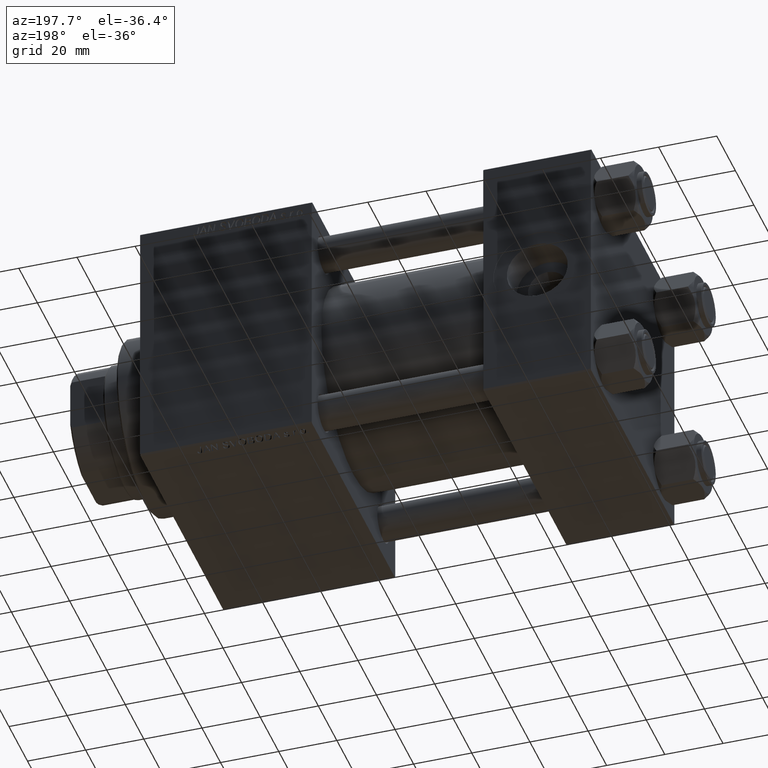
[diagram: clean part render]
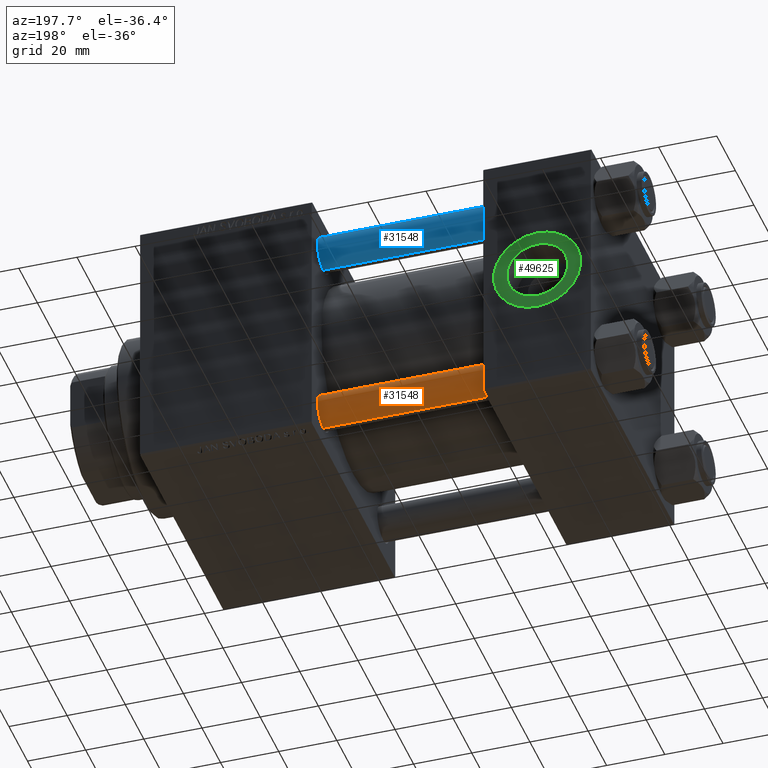
[diagram: same view with three faces highlighted in distinct colors, each labeled with its STEP entity id]
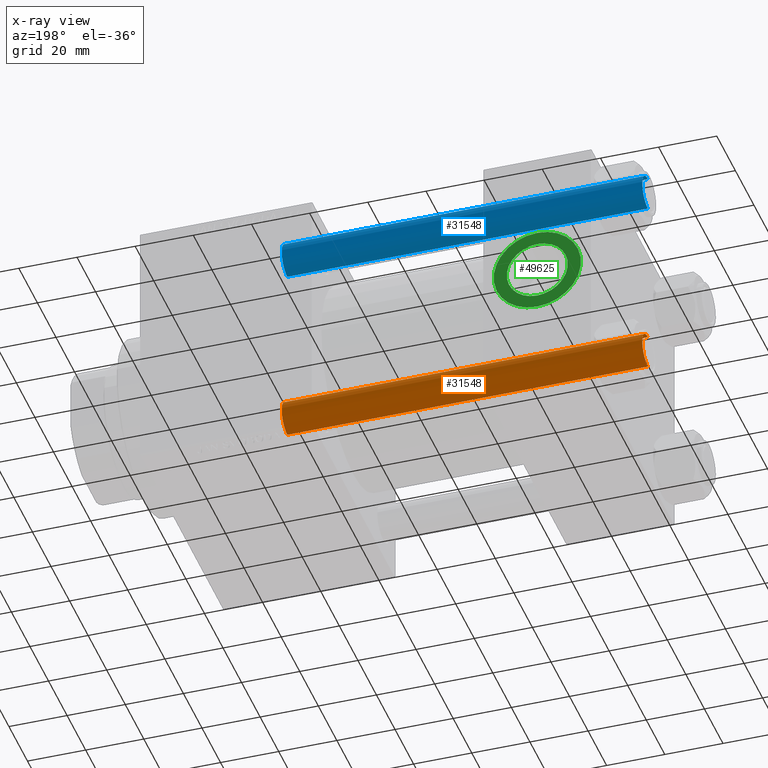
[diagram: x-ray of the same camera — body ghosted, the three highlighted faces saturated]
A machine part, auxiliary view with three faces highlighted in distinct colors.
The next image is the same camera in x-ray (body ghosted, the three faces saturated) — at least one of them is partly hidden behind the body in this view.
Their STEP definitions:

[orange] entity #31548 — the highlighted cylindrical surface (edge-blend (fillet) strip) has radius 6 mm, axis along (1, -0, -0).
#1086 = CYLINDRICAL_SURFACE ( 'NONE', #37909, 6.000000000000000888 ) ;
#1793 = LINE ( 'NONE', #47920, #49297 ) ;
#1878 = EDGE_CURVE ( 'NONE', #9659, #32741, #1793, .T. ) ;
#3780 = EDGE_CURVE ( 'NONE', #44478, #32741, #27539, .T. ) ;
#5133 = ORIENTED_EDGE ( 'NONE', *, *, #34446, .T. ) ;
#6493 = AXIS2_PLACEMENT_3D ( 'NONE', #32267, #21399, #36838 ) ;
#8626 = DIRECTION ( 'NONE',  ( 1.000000000000000000, 0.000000000000000000, 0.000000000000000000 ) ) ;
#9659 = VERTEX_POINT ( 'NONE', #14999 ) ;
#10073 = ORIENTED_EDGE ( 'NONE', *, *, #37509, .T. ) ;
#11018 = EDGE_LOOP ( 'NONE', ( #10073, #5133, #16360, #44499 ) ) ;
#13466 = DIRECTION ( 'NONE',  ( -0.000000000000000000, -0.000000000000000000, -1.000000000000000000 ) ) ;
#14999 = CARTESIAN_POINT ( 'NONE',  ( -6.000000000000000888, 0.000000000000000000, 124.5000000000000000 ) ) ;
#16360 = ORIENTED_EDGE ( 'NONE', *, *, #3780, .T. ) ;
#16549 = CARTESIAN_POINT ( 'NONE',  ( 0.000000000000000000, 0.000000000000000000, 125.0000000000000000 ) ) ;
#19794 = CARTESIAN_POINT ( 'NONE',  ( 0.000000000000000000, 0.000000000000000000, 124.5000000000000000 ) ) ;
#21399 = DIRECTION ( 'NONE',  ( -0.000000000000000000, -0.000000000000000000, 1.000000000000000000 ) ) ;
#21610 = FACE_OUTER_BOUND ( 'NONE', #11018, .T. ) ;
#22109 = LINE ( 'NONE', #44934, #50130 ) ;
#23012 = CARTESIAN_POINT ( 'NONE',  ( 6.000000000000000888, 7.347880794884120722E-16, 124.5000000000000000 ) ) ;
#27539 = CIRCLE ( 'NONE', #6493, 6.000000000000000888 ) ;
#27883 = CARTESIAN_POINT ( 'NONE',  ( 6.000000000000000888, 7.347880794884120722E-16, 0.4999999999999865663 ) ) ;
#31548 = ADVANCED_FACE ( 'NONE', ( #21610 ), #1086, .T. ) ;
#31982 = DIRECTION ( 'NONE',  ( -0.000000000000000000, -0.000000000000000000, -1.000000000000000000 ) ) ;
#32267 = CARTESIAN_POINT ( 'NONE',  ( 0.000000000000000000, 0.000000000000000000, 0.4999999999999865663 ) ) ;
#32741 = VERTEX_POINT ( 'NONE', #45607 ) ;
#34446 = EDGE_CURVE ( 'NONE', #40998, #44478, #22109, .T. ) ;
#35724 = DIRECTION ( 'NONE',  ( 0.000000000000000000, 0.000000000000000000, -1.000000000000000000 ) ) ;
#36838 = DIRECTION ( 'NONE',  ( 1.000000000000000000, 0.000000000000000000, 0.000000000000000000 ) ) ;
#37509 = EDGE_CURVE ( 'NONE', #9659, #40998, #43641, .T. ) ;
#37909 = AXIS2_PLACEMENT_3D ( 'NONE', #16549, #31982, #47466 ) ;
#37948 = AXIS2_PLACEMENT_3D ( 'NONE', #19794, #35724, #8626 ) ;
#40998 = VERTEX_POINT ( 'NONE', #23012 ) ;
#43641 = CIRCLE ( 'NONE', #37948, 6.000000000000000888 ) ;
#44478 = VERTEX_POINT ( 'NONE', #27883 ) ;
#44499 = ORIENTED_EDGE ( 'NONE', *, *, #1878, .F. ) ;
#44934 = CARTESIAN_POINT ( 'NONE',  ( 6.000000000000000888, 7.347880794884120722E-16, 125.0000000000000000 ) ) ;
#45172 = DIRECTION ( 'NONE',  ( -0.000000000000000000, -0.000000000000000000, -1.000000000000000000 ) ) ;
#45607 = CARTESIAN_POINT ( 'NONE',  ( -6.000000000000000888, 0.000000000000000000, 0.4999999999999865663 ) ) ;
#47466 = DIRECTION ( 'NONE',  ( -1.000000000000000000, 0.000000000000000000, 0.000000000000000000 ) ) ;
#47920 = CARTESIAN_POINT ( 'NONE',  ( -6.000000000000000888, 0.000000000000000000, 125.0000000000000000 ) ) ;
#49297 = VECTOR ( 'NONE', #13466, 1000.000000000000000 ) ;
#50130 = VECTOR ( 'NONE', #45172, 1000.000000000000000 ) ;

[blue] entity #31548 — the highlighted cylindrical surface (edge-blend (fillet) strip) has radius 6 mm, axis along (-1, -0, 0).
#1086 = CYLINDRICAL_SURFACE ( 'NONE', #37909, 6.000000000000000888 ) ;
#1793 = LINE ( 'NONE', #47920, #49297 ) ;
#1878 = EDGE_CURVE ( 'NONE', #9659, #32741, #1793, .T. ) ;
#3780 = EDGE_CURVE ( 'NONE', #44478, #32741, #27539, .T. ) ;
#5133 = ORIENTED_EDGE ( 'NONE', *, *, #34446, .T. ) ;
#6493 = AXIS2_PLACEMENT_3D ( 'NONE', #32267, #21399, #36838 ) ;
#8626 = DIRECTION ( 'NONE',  ( 1.000000000000000000, 0.000000000000000000, 0.000000000000000000 ) ) ;
#9659 = VERTEX_POINT ( 'NONE', #14999 ) ;
#10073 = ORIENTED_EDGE ( 'NONE', *, *, #37509, .T. ) ;
#11018 = EDGE_LOOP ( 'NONE', ( #10073, #5133, #16360, #44499 ) ) ;
#13466 = DIRECTION ( 'NONE',  ( -0.000000000000000000, -0.000000000000000000, -1.000000000000000000 ) ) ;
#14999 = CARTESIAN_POINT ( 'NONE',  ( -6.000000000000000888, 0.000000000000000000, 124.5000000000000000 ) ) ;
#16360 = ORIENTED_EDGE ( 'NONE', *, *, #3780, .T. ) ;
#16549 = CARTESIAN_POINT ( 'NONE',  ( 0.000000000000000000, 0.000000000000000000, 125.0000000000000000 ) ) ;
#19794 = CARTESIAN_POINT ( 'NONE',  ( 0.000000000000000000, 0.000000000000000000, 124.5000000000000000 ) ) ;
#21399 = DIRECTION ( 'NONE',  ( -0.000000000000000000, -0.000000000000000000, 1.000000000000000000 ) ) ;
#21610 = FACE_OUTER_BOUND ( 'NONE', #11018, .T. ) ;
#22109 = LINE ( 'NONE', #44934, #50130 ) ;
#23012 = CARTESIAN_POINT ( 'NONE',  ( 6.000000000000000888, 7.347880794884120722E-16, 124.5000000000000000 ) ) ;
#27539 = CIRCLE ( 'NONE', #6493, 6.000000000000000888 ) ;
#27883 = CARTESIAN_POINT ( 'NONE',  ( 6.000000000000000888, 7.347880794884120722E-16, 0.4999999999999865663 ) ) ;
#31548 = ADVANCED_FACE ( 'NONE', ( #21610 ), #1086, .T. ) ;
#31982 = DIRECTION ( 'NONE',  ( -0.000000000000000000, -0.000000000000000000, -1.000000000000000000 ) ) ;
#32267 = CARTESIAN_POINT ( 'NONE',  ( 0.000000000000000000, 0.000000000000000000, 0.4999999999999865663 ) ) ;
#32741 = VERTEX_POINT ( 'NONE', #45607 ) ;
#34446 = EDGE_CURVE ( 'NONE', #40998, #44478, #22109, .T. ) ;
#35724 = DIRECTION ( 'NONE',  ( 0.000000000000000000, 0.000000000000000000, -1.000000000000000000 ) ) ;
#36838 = DIRECTION ( 'NONE',  ( 1.000000000000000000, 0.000000000000000000, 0.000000000000000000 ) ) ;
#37509 = EDGE_CURVE ( 'NONE', #9659, #40998, #43641, .T. ) ;
#37909 = AXIS2_PLACEMENT_3D ( 'NONE', #16549, #31982, #47466 ) ;
#37948 = AXIS2_PLACEMENT_3D ( 'NONE', #19794, #35724, #8626 ) ;
#40998 = VERTEX_POINT ( 'NONE', #23012 ) ;
#43641 = CIRCLE ( 'NONE', #37948, 6.000000000000000888 ) ;
#44478 = VERTEX_POINT ( 'NONE', #27883 ) ;
#44499 = ORIENTED_EDGE ( 'NONE', *, *, #1878, .F. ) ;
#44934 = CARTESIAN_POINT ( 'NONE',  ( 6.000000000000000888, 7.347880794884120722E-16, 125.0000000000000000 ) ) ;
#45172 = DIRECTION ( 'NONE',  ( -0.000000000000000000, -0.000000000000000000, -1.000000000000000000 ) ) ;
#45607 = CARTESIAN_POINT ( 'NONE',  ( -6.000000000000000888, 0.000000000000000000, 0.4999999999999865663 ) ) ;
#47466 = DIRECTION ( 'NONE',  ( -1.000000000000000000, 0.000000000000000000, 0.000000000000000000 ) ) ;
#47920 = CARTESIAN_POINT ( 'NONE',  ( -6.000000000000000888, 0.000000000000000000, 125.0000000000000000 ) ) ;
#49297 = VECTOR ( 'NONE', #13466, 1000.000000000000000 ) ;
#50130 = VECTOR ( 'NONE', #45172, 1000.000000000000000 ) ;

[green] entity #49625 — the highlighted planar face has unit normal (0, 1, 0).
#3515 = EDGE_CURVE ( 'NONE', #48472, #49904, #40428, .T. ) ;
#4501 = EDGE_CURVE ( 'NONE', #49904, #48472, #46949, .T. ) ;
#4545 = DIRECTION ( 'NONE',  ( 0.000000000000000000, 1.000000000000000000, 0.000000000000000000 ) ) ;
#6310 = VERTEX_POINT ( 'NONE', #9680 ) ;
#6824 = ORIENTED_EDGE ( 'NONE', *, *, #11896, .T. ) ;
#6983 = DIRECTION ( 'NONE',  ( 0.000000000000000000, 0.000000000000000000, 1.000000000000000000 ) ) ;
#8859 = DIRECTION ( 'NONE',  ( 0.000000000000000000, -0.000000000000000000, 1.000000000000000000 ) ) ;
#9091 = CARTESIAN_POINT ( 'NONE',  ( 18.50000000000000000, 44.79999999999999716, 0.000000000000000000 ) ) ;
#9680 = CARTESIAN_POINT ( 'NONE',  ( 18.50000000000000355, 44.79999999999999716, -15.00000000000000178 ) ) ;
#11596 = AXIS2_PLACEMENT_3D ( 'NONE', #9091, #39755, #35937 ) ;
#11896 = EDGE_CURVE ( 'NONE', #36636, #6310, #22942, .T. ) ;
#12919 = CARTESIAN_POINT ( 'NONE',  ( 18.50000000000000000, 44.79999999999999716, 0.000000000000000000 ) ) ;
#14348 = DIRECTION ( 'NONE',  ( 0.000000000000000000, 1.000000000000000000, 0.000000000000000000 ) ) ;
#14674 = EDGE_CURVE ( 'NONE', #6310, #36636, #40671, .T. ) ;
#14797 = AXIS2_PLACEMENT_3D ( 'NONE', #12919, #31660, #8859 ) ;
#16226 = PLANE ( 'NONE',  #14797 ) ;
#17606 = CARTESIAN_POINT ( 'NONE',  ( 18.50000000000000000, 44.79999999999999716, 0.000000000000000000 ) ) ;
#19240 = CARTESIAN_POINT ( 'NONE',  ( 18.50000000000000000, 44.79999999999999716, 0.000000000000000000 ) ) ;
#22048 = ORIENTED_EDGE ( 'NONE', *, *, #4501, .F. ) ;
#22942 = CIRCLE ( 'NONE', #11596, 15.00000000000000178 ) ;
#23766 = CARTESIAN_POINT ( 'NONE',  ( 18.50000000000000000, 44.79999999999999716, 10.48000000000000043 ) ) ;
#28293 = CARTESIAN_POINT ( 'NONE',  ( 18.50000000000000000, 44.79999999999999716, 0.000000000000000000 ) ) ;
#28422 = CARTESIAN_POINT ( 'NONE',  ( 18.50000000000000000, 44.79999999999999716, -10.48000000000000043 ) ) ;
#31660 = DIRECTION ( 'NONE',  ( 0.000000000000000000, 1.000000000000000000, 0.000000000000000000 ) ) ;
#31903 = FACE_OUTER_BOUND ( 'NONE', #36506, .T. ) ;
#33108 = ORIENTED_EDGE ( 'NONE', *, *, #14674, .T. ) ;
#33925 = AXIS2_PLACEMENT_3D ( 'NONE', #28293, #14348, #6983 ) ;
#35009 = AXIS2_PLACEMENT_3D ( 'NONE', #17606, #48281, #48782 ) ;
#35436 = DIRECTION ( 'NONE',  ( 0.000000000000000000, 0.000000000000000000, 1.000000000000000000 ) ) ;
#35937 = DIRECTION ( 'NONE',  ( 0.000000000000000000, 0.000000000000000000, 1.000000000000000000 ) ) ;
#36506 = EDGE_LOOP ( 'NONE', ( #6824, #33108 ) ) ;
#36636 = VERTEX_POINT ( 'NONE', #47635 ) ;
#39755 = DIRECTION ( 'NONE',  ( 0.000000000000000000, 1.000000000000000000, 0.000000000000000000 ) ) ;
#40428 = CIRCLE ( 'NONE', #33925, 10.48000000000000043 ) ;
#40671 = CIRCLE ( 'NONE', #35009, 15.00000000000000178 ) ;
#40927 = ORIENTED_EDGE ( 'NONE', *, *, #3515, .F. ) ;
#43577 = FACE_BOUND ( 'NONE', #46547, .T. ) ;
#45350 = AXIS2_PLACEMENT_3D ( 'NONE', #19240, #4545, #35436 ) ;
#46547 = EDGE_LOOP ( 'NONE', ( #22048, #40927 ) ) ;
#46949 = CIRCLE ( 'NONE', #45350, 10.48000000000000043 ) ;
#47635 = CARTESIAN_POINT ( 'NONE',  ( 18.50000000000000000, 44.79999999999999716, 15.00000000000000178 ) ) ;
#48281 = DIRECTION ( 'NONE',  ( 0.000000000000000000, 1.000000000000000000, 0.000000000000000000 ) ) ;
#48472 = VERTEX_POINT ( 'NONE', #28422 ) ;
#48782 = DIRECTION ( 'NONE',  ( 0.000000000000000000, 0.000000000000000000, 1.000000000000000000 ) ) ;
#49625 = ADVANCED_FACE ( 'NONE', ( #43577, #31903 ), #16226, .T. ) ;
#49904 = VERTEX_POINT ( 'NONE', #23766 ) ;